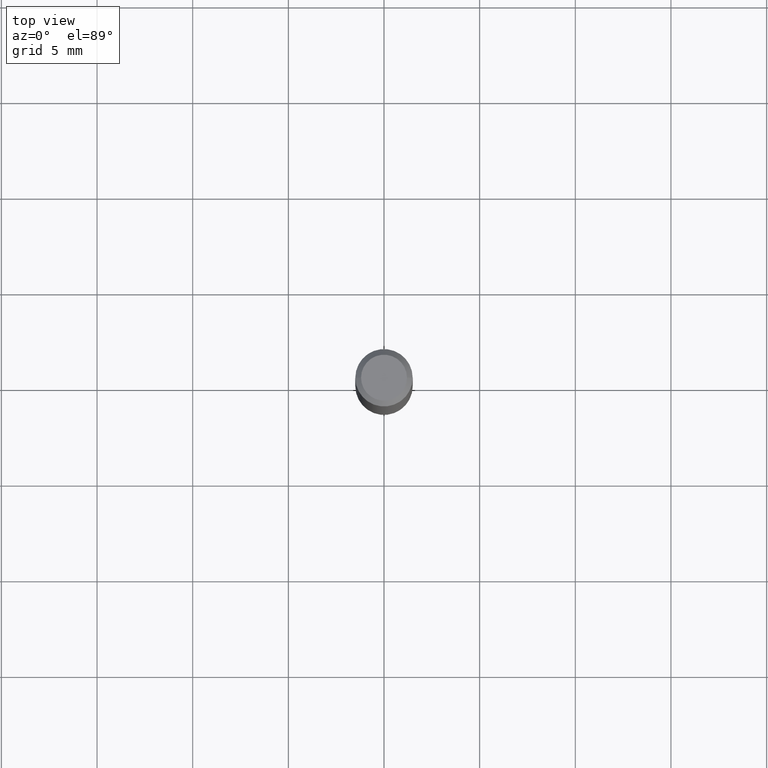
[diagram: clean part render]
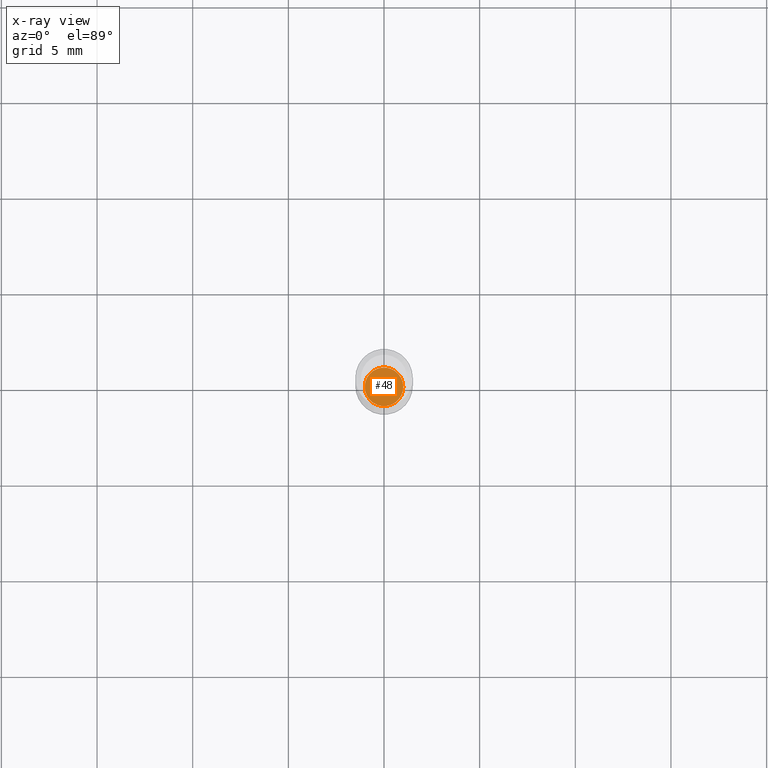
[diagram: x-ray — body ghosted, one internal face saturated and labeled with its STEP entity id]
A machine part, top view, then the same camera in x-ray: the body is ghosted and one INTERNAL B-rep face — a face not visible from any outside direction — is saturated and labeled: STEP entity #48.
In plain terms, the highlighted planar face has unit normal (-0, 0, 1).
Its self-contained STEP definition (entity closure, byte-faithful):
#16 = ORIENTED_EDGE ( 'NONE', *, *, #377, .F. ) ;
#48 = ADVANCED_FACE ( 'NONE', ( #95 ), #408, .F. ) ;
#59 = CARTESIAN_POINT ( 'NONE',  ( 0.03964999999999999775, -4.098300795534082706E-15, -1.094499999999999806 ) ) ;
#72 = AXIS2_PLACEMENT_3D ( 'NONE', #345, #386, #422 ) ;
#95 = FACE_OUTER_BOUND ( 'NONE', #468, .T. ) ;
#98 = CARTESIAN_POINT ( 'NONE',  ( 2.676565608369631794E-29, -3.821426325363822773E-15, -1.094499999999999806 ) ) ;
#149 = VERTEX_POINT ( 'NONE', #160 ) ;
#160 = CARTESIAN_POINT ( 'NONE',  ( -0.03964999999999999775, -3.537046903460831717E-15, -1.094499999999999806 ) ) ;
#162 = EDGE_CURVE ( 'NONE', #149, #434, #279, .T. ) ;
#244 = DIRECTION ( 'NONE',  ( -2.438088387897960049E-29, 3.491481338843145188E-15, 1.000000000000000000 ) ) ;
#245 = DIRECTION ( 'NONE',  ( -2.445468806185136597E-29, 3.491481338843145583E-15, 1.000000000000000000 ) ) ;
#265 = AXIS2_PLACEMENT_3D ( 'NONE', #397, #245, #440 ) ;
#279 = CIRCLE ( 'NONE', #72, 0.03964999999999999775 ) ;
#337 = AXIS2_PLACEMENT_3D ( 'NONE', #98, #244, #356 ) ;
#345 = CARTESIAN_POINT ( 'NONE',  ( 2.676565608369631794E-29, -3.821426325363822773E-15, -1.094499999999999806 ) ) ;
#356 = DIRECTION ( 'NONE',  ( 1.000000000000000000, -6.982962677686265922E-15, 4.876176775795935793E-29 ) ) ;
#359 = ORIENTED_EDGE ( 'NONE', *, *, #162, .F. ) ;
#377 = EDGE_CURVE ( 'NONE', #434, #149, #396, .T. ) ;
#386 = DIRECTION ( 'NONE',  ( -2.445468806185136597E-29, 3.491481338843145583E-15, 1.000000000000000000 ) ) ;
#396 = CIRCLE ( 'NONE', #265, 0.03964999999999999775 ) ;
#397 = CARTESIAN_POINT ( 'NONE',  ( 2.676565608369631794E-29, -3.821426325363822773E-15, -1.094499999999999806 ) ) ;
#408 = PLANE ( 'NONE',  #337 ) ;
#422 = DIRECTION ( 'NONE',  ( 1.000000000000000000, -6.982962677686261189E-15, 0.000000000000000000 ) ) ;
#434 = VERTEX_POINT ( 'NONE', #59 ) ;
#440 = DIRECTION ( 'NONE',  ( 1.000000000000000000, -6.982962677686261189E-15, 0.000000000000000000 ) ) ;
#468 = EDGE_LOOP ( 'NONE', ( #16, #359 ) ) ;